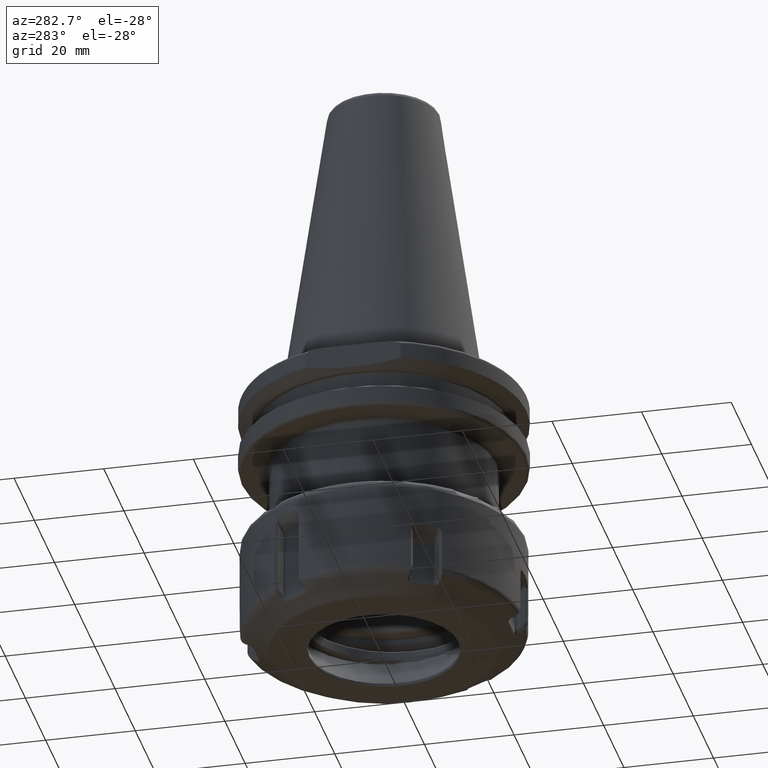
[diagram: clean part render]
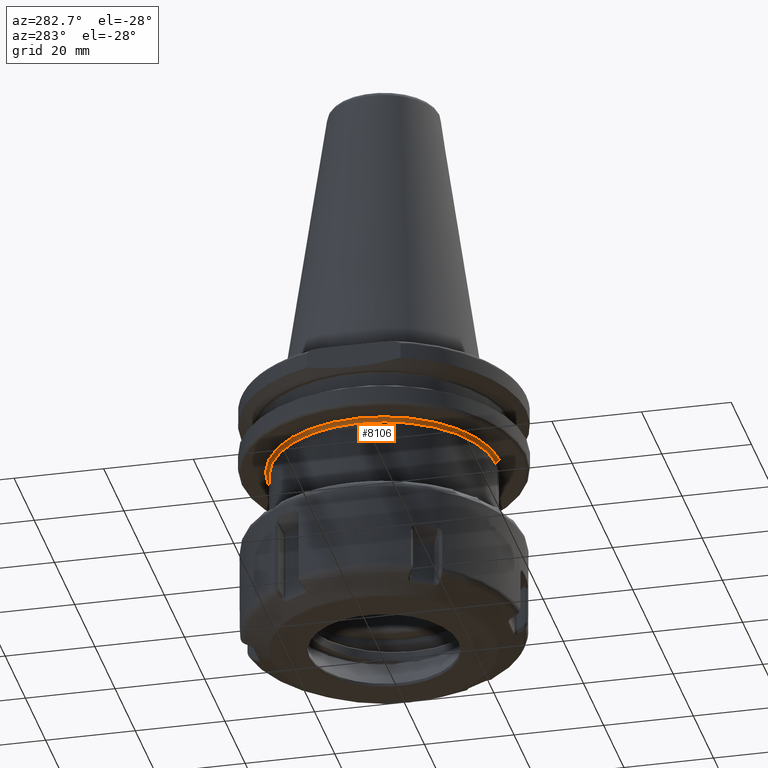
[diagram: same view with one face highlighted and labeled with its STEP entity id]
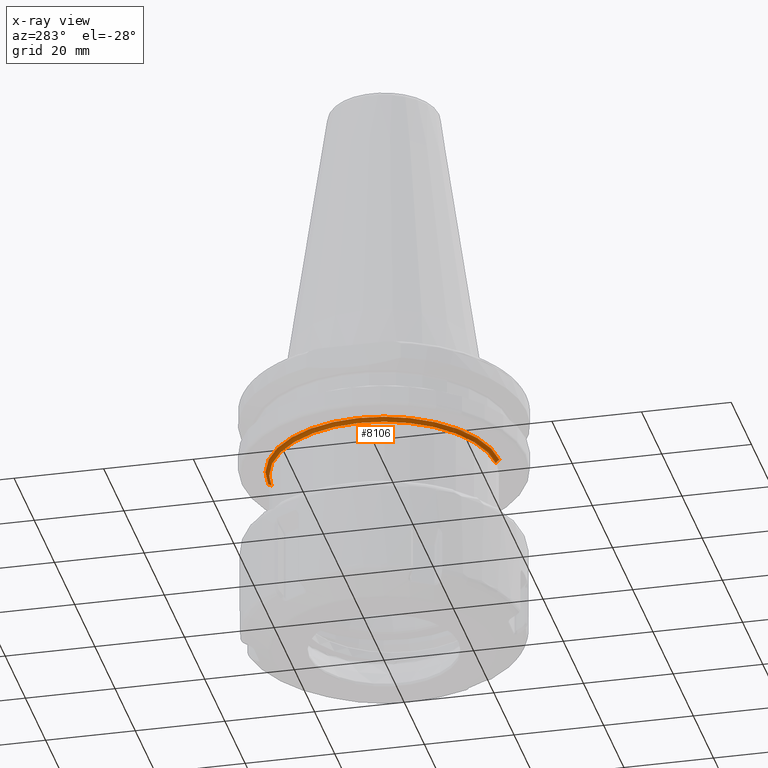
[diagram: x-ray of the same camera — body ghosted, the highlighted face saturated]
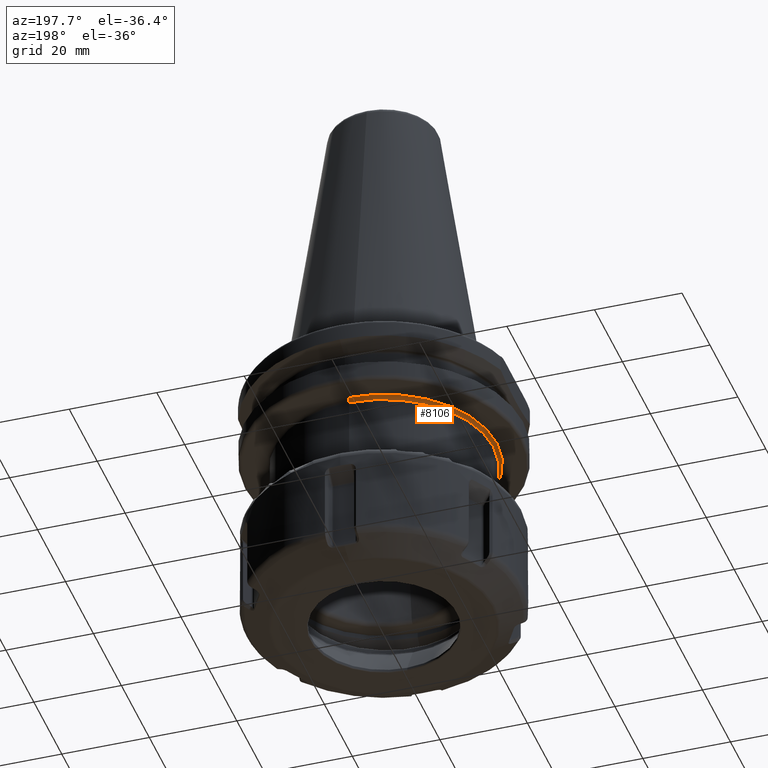
[diagram: same view with one face highlighted and labeled with its STEP entity id]
A machine part, auxiliary view. The second image highlights one B-rep face of the part: STEP entity #8106.
The next image is the same camera in x-ray: the body ghosted, the highlighted face saturated — about 0% of this face is hidden behind the body in this view.
A second angle (auxiliary view) of the same face is appended — the face is thin or edge-on in the first view.
In plain terms, the highlighted toroidal blend (fillet) surface has major radius 25.8 mm and minor (blend) radius 0.8 mm.
Its self-contained STEP definition (entity closure, byte-faithful):
#11=CARTESIAN_POINT('',(0,0,0));
#12=DIRECTION('',(0,0,-1));
#13=DIRECTION('',(0,-1,0));
#14=AXIS2_PLACEMENT_3D('',#11,#12,#13);
#2515=CARTESIAN_POINT('',(-0.00000000000001915134717478,25.8,-0.8));
#2516=DIRECTION('',(1,0,0));
#2517=DIRECTION('',(0,-0.00000000000007105427357601,1));
#2518=AXIS2_PLACEMENT_3D('',#2515,#2516,#2517);
#2520=CARTESIAN_POINT('',(0.00000000000001598721155460,-25.8,-0.8));
#2521=DIRECTION('',(-1,0,0));
#2522=DIRECTION('',(0,0.00000000000007105427357601,1));
#2523=AXIS2_PLACEMENT_3D('',#2520,#2521,#2522);
#2525=CARTESIAN_POINT('',(0,0,-0.8));
#2526=DIRECTION('',(0,0,-1));
#2527=DIRECTION('',(0,-1,0));
#2528=AXIS2_PLACEMENT_3D('',#2525,#2526,#2527);
#3831=CARTESIAN_POINT('',(0,-25.8,0));
#3832=CARTESIAN_POINT('',(0,25.8,0));
#3833=VERTEX_POINT('',#3831);
#3834=VERTEX_POINT('',#3832);
#3835=CARTESIAN_POINT('',(0,-25,-0.8));
#3836=CARTESIAN_POINT('',(0,25,-0.8));
#3837=VERTEX_POINT('',#3835);
#3838=VERTEX_POINT('',#3836);
#8094=CARTESIAN_POINT('',(0,0,-0.8));
#8095=DIRECTION('',(0,0,-1));
#8096=DIRECTION('',(0.004438707678347,-0.9999901488886,0));
#8097=AXIS2_PLACEMENT_3D('',#8094,#8095,#8096);
#8098=TOROIDAL_SURFACE('',#8097,25.8,0.8);
#8099=ORIENTED_EDGE('',*,*,#3854,.F.);
#8100=ORIENTED_EDGE('',*,*,#8089,.T.);
#8102=ORIENTED_EDGE('',*,*,#8101,.T.);
#8103=ORIENTED_EDGE('',*,*,#8086,.F.);
#8104=EDGE_LOOP('',(#8099,#8100,#8102,#8103));
#8105=FACE_OUTER_BOUND('',#8104,.F.);
#8106=ADVANCED_FACE('',(#8105),#8098,.F.);
#15=CIRCLE('',#14,25.8);
#2519=CIRCLE('',#2518,0.8);
#2524=CIRCLE('',#2523,0.8);
#2529=CIRCLE('',#2528,25);
#3854=EDGE_CURVE('',#3833,#3834,#15,.T.);
#8086=EDGE_CURVE('',#3834,#3838,#2519,.T.);
#8089=EDGE_CURVE('',#3833,#3837,#2524,.T.);
#8101=EDGE_CURVE('',#3837,#3838,#2529,.T.);